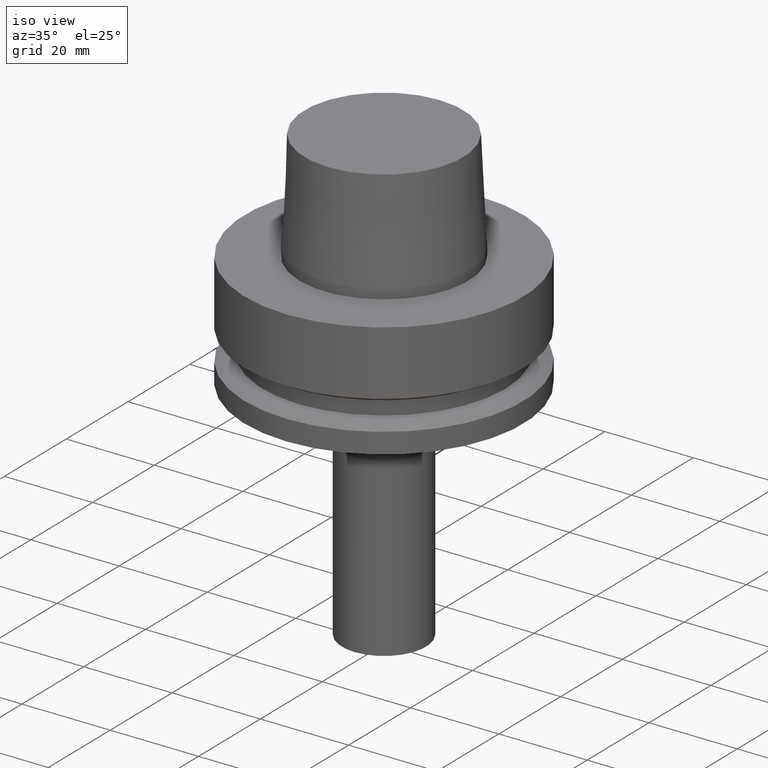
[diagram: clean part render]
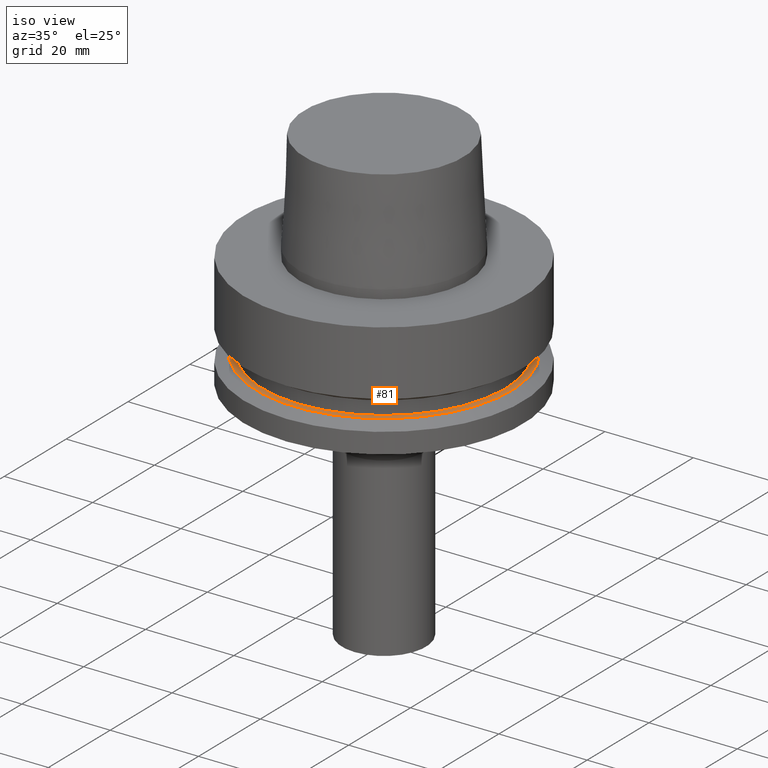
[diagram: same view with one face highlighted and labeled with its STEP entity id]
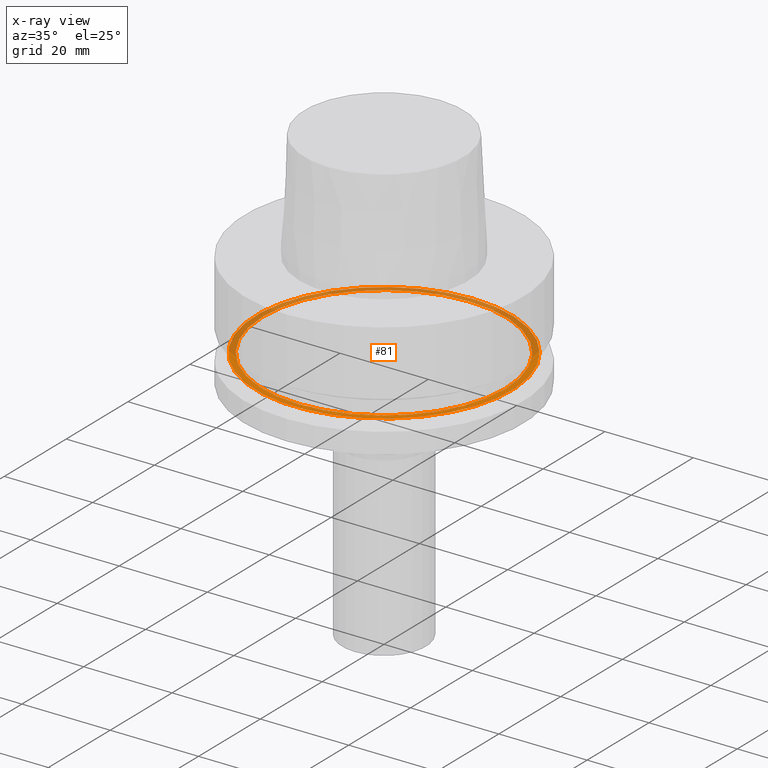
[diagram: x-ray of the same camera — body ghosted, the highlighted face saturated]
A machine part, iso view. The second image highlights one B-rep face of the part: STEP entity #81.
The next image is the same camera in x-ray: the body ghosted, the highlighted face saturated — about 51% of this face is hidden behind the body in this view.
In plain terms, the highlighted planar face has unit normal (-0, -0, 1).
Its self-contained STEP definition (entity closure, byte-faithful):
#81=ADVANCED_FACE('',(#112,#113),#114,.T.);
#112=FACE_OUTER_BOUND('',#164,.T.);
#113=FACE_BOUND('',#165,.T.);
#114=PLANE('',#166);
#164=EDGE_LOOP('',(#228));
#165=EDGE_LOOP('',(#229));
#166=AXIS2_PLACEMENT_3D('',#230,#231,#232);
#228=ORIENTED_EDGE('',*,*,#293,.F.);
#229=ORIENTED_EDGE('',*,*,#292,.T.);
#230=CARTESIAN_POINT('',(1.21699275665268E-015,28.19879763,-19.875));
#231=DIRECTION('',(-6.12323399573677E-017,-1.22464679914735E-016,1.0));
#232=DIRECTION('',(1.23259516440783E-032,-1.0,-1.22464679914735E-016));
#292=EDGE_CURVE('',#315,#315,#316,.T.);
#293=EDGE_CURVE('',#317,#317,#318,.T.);
#315=VERTEX_POINT('',#349);
#316=CIRCLE('',#350,27.5);
#317=VERTEX_POINT('',#351);
#318=CIRCLE('',#352,28.89759526);
#349=CARTESIAN_POINT('',(1.21699275665268E-015,27.5,-19.875));
#350=AXIS2_PLACEMENT_3D('',#389,#390,#391);
#351=CARTESIAN_POINT('',(1.21699275665268E-015,28.89759526,-19.875));
#352=AXIS2_PLACEMENT_3D('',#392,#393,#394);
#389=CARTESIAN_POINT('',(1.21699275665268E-015,2.43398551330536E-015,-19.875));
#390=DIRECTION('',(6.12323399573677E-017,1.22464679914735E-016,-1.0));
#391=DIRECTION('',(-1.23259516440783E-032,1.0,1.22464679914735E-016));
#392=CARTESIAN_POINT('',(1.21699275665268E-015,2.43398551330536E-015,-19.875));
#393=DIRECTION('',(6.12323399573677E-017,1.22464679914735E-016,-1.0));
#394=DIRECTION('',(-1.23259516440783E-032,1.0,1.22464679914735E-016));